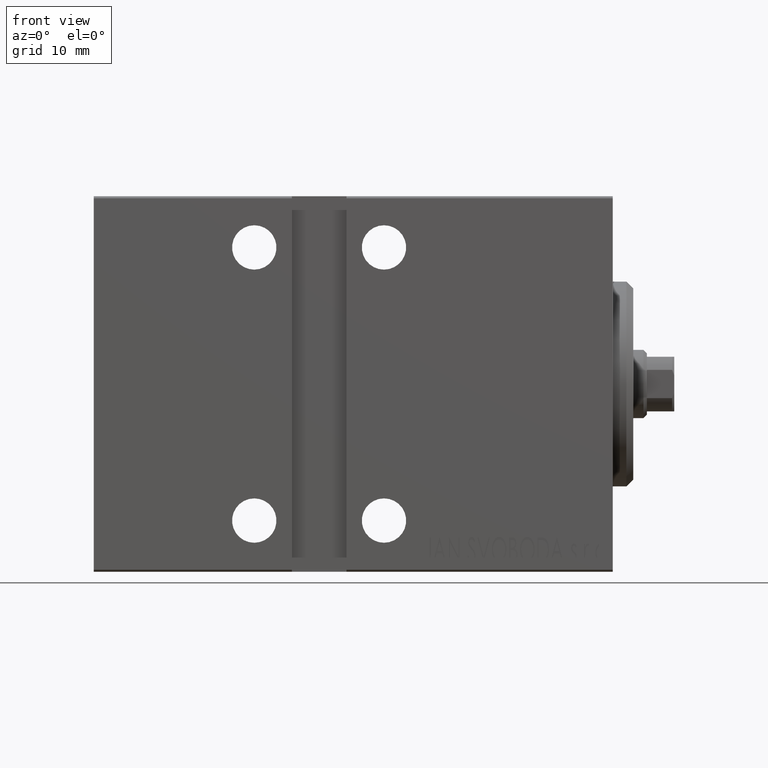
[diagram: clean part render]
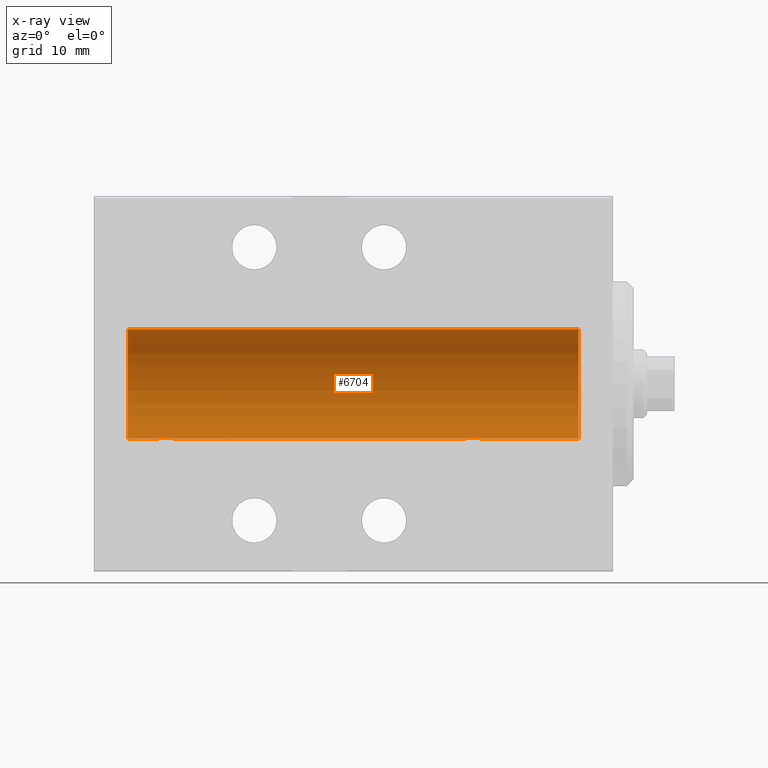
[diagram: x-ray — body ghosted, one internal face saturated and labeled with its STEP entity id]
A machine part, front view, then the same camera in x-ray: the body is ghosted and one INTERNAL B-rep face — a face not visible from any outside direction — is saturated and labeled: STEP entity #6704.
In plain terms, the highlighted cylindrical surface (partial cylindrical patch) has radius 8 mm, axis along (1, 0, -0).
Its self-contained STEP definition (entity closure, byte-faithful):
#72 = EDGE_CURVE ( 'NONE', #35275, #3928, #22215, .T. ) ;
#909 = ORIENTED_EDGE ( 'NONE', *, *, #29361, .T. ) ;
#1686 = ORIENTED_EDGE ( 'NONE', *, *, #34898, .F. ) ;
#1924 = CARTESIAN_POINT ( 'NONE',  ( 64.28333392022814508, -0.3297258132310580403, -7.994620111903502746 ) ) ;
#1994 = CARTESIAN_POINT ( 'NONE',  ( 21.12714162834986098, -1.084361243153320720, -7.926301147147069237 ) ) ;
#2358 = CARTESIAN_POINT ( 'NONE',  ( 65.82830666114115559, -1.217212176555607872, -7.907113222863030089 ) ) ;
#2566 = CARTESIAN_POINT ( 'NONE',  ( 65.17298283628254296, -1.217515856520244855, -7.907063872927295733 ) ) ;
#2645 = CARTESIAN_POINT ( 'NONE',  ( 71.00000000000000000, 9.797174393178823685E-16, -7.999999999999998224 ) ) ;
#3597 = EDGE_LOOP ( 'NONE', ( #10533, #12752, #13181, #3981, #10440, #22176, #909, #1686 ) ) ;
#3928 = VERTEX_POINT ( 'NONE', #25520 ) ;
#3981 = ORIENTED_EDGE ( 'NONE', *, *, #11980, .T. ) ;
#4256 = AXIS2_PLACEMENT_3D ( 'NONE', #5460, #35700, #32625 ) ;
#4613 = CARTESIAN_POINT ( 'NONE',  ( 21.59250917855271013, -0.6288424646912643690, -7.976670562295706368 ) ) ;
#5194 = CARTESIAN_POINT ( 'NONE',  ( 64.40834966532098349, -0.6303134207468059635, -7.976551562999471656 ) ) ;
#5266 = CARTESIAN_POINT ( 'NONE',  ( 20.33559448851098850, -1.250104850332080408, -7.901723728054489193 ) ) ;
#5460 = CARTESIAN_POINT ( 'NONE',  ( 5.000000000000004441, 0.000000000000000000, 0.000000000000000000 ) ) ;
#5632 = CARTESIAN_POINT ( 'NONE',  ( 66.75000000000000000, 9.797173987969553159E-16, -7.999999999999998224 ) ) ;
#5849 = CARTESIAN_POINT ( 'NONE',  ( 66.12714162834984677, -1.084361243153328047, -7.926301147147063908 ) ) ;
#6704 = ADVANCED_FACE ( 'NONE', ( #22704 ), #16121, .F. ) ;
#6780 = DIRECTION ( 'NONE',  ( -1.000000000000000000, -0.000000000000000000, -0.000000000000000000 ) ) ;
#7037 = CARTESIAN_POINT ( 'NONE',  ( 21.49958686675913100, -0.7680324342712168129, -7.963892330120035723 ) ) ;
#7746 = DIRECTION ( 'NONE',  ( -1.000000000000000000, -0.000000000000000000, -0.000000000000000000 ) ) ;
#7748 = CIRCLE ( 'NONE', #4256, 7.999999999999998224 ) ;
#7790 = VERTEX_POINT ( 'NONE', #17834 ) ;
#7895 = CARTESIAN_POINT ( 'NONE',  ( 21.71715712019487654, -0.3279446529214867234, -7.994696267489720398 ) ) ;
#8109 = CARTESIAN_POINT ( 'NONE',  ( 21.05544625654725266, -1.122809931695433638, -7.920878051565290789 ) ) ;
#8348 = DIRECTION ( 'NONE',  ( 0.000000000000000000, 0.000000000000000000, 1.000000000000000000 ) ) ;
#8694 = CARTESIAN_POINT ( 'NONE',  ( 64.50158244334248536, -0.7695044314719156064, -7.963745725343513548 ) ) ;
#8974 = VERTEX_POINT ( 'NONE', #20861 ) ;
#9004 = DIRECTION ( 'NONE',  ( -1.000000000000000000, -0.000000000000000000, -0.000000000000000000 ) ) ;
#9131 = CARTESIAN_POINT ( 'NONE',  ( 66.71715712019489786, -0.3279446529214849471, -7.994696267489720398 ) ) ;
#9574 = CARTESIAN_POINT ( 'NONE',  ( 21.26267005793690856, -0.9937204387496726410, -7.938174152191988853 ) ) ;
#10440 = ORIENTED_EDGE ( 'NONE', *, *, #38823, .T. ) ;
#10533 = ORIENTED_EDGE ( 'NONE', *, *, #72, .F. ) ;
#11254 = VECTOR ( 'NONE', #7746, 1000.000000000000000 ) ;
#11629 = CARTESIAN_POINT ( 'NONE',  ( 71.00000000000000000, 0.000000000000000000, 0.000000000000000000 ) ) ;
#11980 = EDGE_CURVE ( 'NONE', #7790, #13292, #24535, .T. ) ;
#12408 = CARTESIAN_POINT ( 'NONE',  ( 64.87056207267771413, -1.092287957405123633, -7.925333492638526600 ) ) ;
#12642 = CARTESIAN_POINT ( 'NONE',  ( 19.50158244334251378, -0.7695044314719124978, -7.963745725343517101 ) ) ;
#12752 = ORIENTED_EDGE ( 'NONE', *, *, #17626, .T. ) ;
#13181 = ORIENTED_EDGE ( 'NONE', *, *, #16681, .T. ) ;
#13292 = VERTEX_POINT ( 'NONE', #25186 ) ;
#13619 = VERTEX_POINT ( 'NONE', #39582 ) ;
#15020 = CARTESIAN_POINT ( 'NONE',  ( 71.00000000000000000, 9.797174393178823685E-16, -7.999999999999998224 ) ) ;
#15688 = CARTESIAN_POINT ( 'NONE',  ( 66.74999999999998579, -0.1632520343443076560, -8.000000000000000000 ) ) ;
#16121 = CYLINDRICAL_SURFACE ( 'NONE', #30424, 7.999999999999998224 ) ;
#16133 = CARTESIAN_POINT ( 'NONE',  ( 19.73184514123549604, -0.9994562523959170663, -7.938165420771272629 ) ) ;
#16512 = VECTOR ( 'NONE', #31344, 1000.000000000000000 ) ;
#16681 = EDGE_CURVE ( 'NONE', #41584, #7790, #28089, .T. ) ;
#17626 = EDGE_CURVE ( 'NONE', #35275, #41584, #26070, .T. ) ;
#17834 = CARTESIAN_POINT ( 'NONE',  ( 64.25000000000000000, -9.361515949570352286E-15, -7.999999999999998224 ) ) ;
#17957 = CARTESIAN_POINT ( 'NONE',  ( 71.00000000000000000, 9.797174393178823685E-16, -7.999999999999998224 ) ) ;
#18546 = CARTESIAN_POINT ( 'NONE',  ( 64.25000000000002842, -0.1654128203352991100, -7.999999999999996447 ) ) ;
#18981 = CARTESIAN_POINT ( 'NONE',  ( 66.59250917855270302, -0.6288424646912635918, -7.976670562295704592 ) ) ;
#20698 = VERTEX_POINT ( 'NONE', #22394 ) ;
#20861 = CARTESIAN_POINT ( 'NONE',  ( 5.000000000000004441, 0.000000000000000000, 7.999999999999998224 ) ) ;
#21466 = CARTESIAN_POINT ( 'NONE',  ( 19.40834966532100481, -0.6303134207468028549, -7.976551562999471656 ) ) ;
#22048 = CARTESIAN_POINT ( 'NONE',  ( 66.32687899779141105, -0.9409612394163470173, -7.944680966683013601 ) ) ;
#22176 = ORIENTED_EDGE ( 'NONE', *, *, #31100, .T. ) ;
#22215 = CIRCLE ( 'NONE', #39711, 7.999999999999998224 ) ;
#22394 = CARTESIAN_POINT ( 'NONE',  ( 19.25000000000000711, -6.253246997522681077E-15, -7.999999999999998224 ) ) ;
#22704 = FACE_OUTER_BOUND ( 'NONE', #3597, .T. ) ;
#22792 = CARTESIAN_POINT ( 'NONE',  ( 71.00000000000000000, 0.000000000000000000, 7.999999999999998224 ) ) ;
#24535 = LINE ( 'NONE', #17957, #16512 ) ;
#24536 = CARTESIAN_POINT ( 'NONE',  ( 21.75000000000000355, 9.797173987965608855E-16, -7.999999999999998224 ) ) ;
#24830 = DIRECTION ( 'NONE',  ( 0.000000000000000000, 0.000000000000000000, 1.000000000000000000 ) ) ;
#25055 = B_SPLINE_CURVE_WITH_KNOTS ( 'NONE', 3,
 ( #24536, #37916, #7895, #4613, #7037, #35064, #9574, #1994, #8109, #42655, #38129, #5266, #26008, #25195, #16133, #12642, #21466, #34847, #29513, #38346 ),
 .UNSPECIFIED., .F., .F.,
 ( 4, 2, 2, 2, 2, 2, 2, 2, 2, 4 ),
 ( 0.003914068143704946962, 0.004403205918210064719, 0.004892343692715182477, 0.005136912579967740922, 0.005381481467220300234, 0.005870619241725407583, 0.006359757016230515800, 0.006848894790735624016, 0.007338032565240732233, 0.007827170339745840449 ),
 .UNSPECIFIED. ) ;
#25186 = CARTESIAN_POINT ( 'NONE',  ( 21.75000000000000355, 9.797173987965608855E-16, -7.999999999999998224 ) ) ;
#25195 = CARTESIAN_POINT ( 'NONE',  ( 19.87056207267772123, -1.092287957405124077, -7.925333492638530153 ) ) ;
#25341 = CARTESIAN_POINT ( 'NONE',  ( 66.26267005793690146, -0.9937204387496809677, -7.938174152191988853 ) ) ;
#25520 = CARTESIAN_POINT ( 'NONE',  ( 71.00000000000000000, 0.000000000000000000, 7.999999999999998224 ) ) ;
#25778 = CARTESIAN_POINT ( 'NONE',  ( 64.25000000000000000, -9.361515949570352286E-15, -7.999999999999998224 ) ) ;
#25989 = CARTESIAN_POINT ( 'NONE',  ( 64.73184514123549604, -0.9994562523959209521, -7.938165420771274405 ) ) ;
#26008 = CARTESIAN_POINT ( 'NONE',  ( 20.17298283628254651, -1.217515856520243966, -7.907063872927295733 ) ) ;
#26070 = LINE ( 'NONE', #2645, #28590 ) ;
#27266 = CARTESIAN_POINT ( 'NONE',  ( 66.75000000000000000, 9.797173987969553159E-16, -7.999999999999998224 ) ) ;
#28089 = B_SPLINE_CURVE_WITH_KNOTS ( 'NONE', 3,
 ( #5632, #15688, #9131, #18981, #42639, #22048, #25341, #5849, #38494, #2358, #35429, #38714, #2566, #12408, #25989, #8694, #5194, #1924, #18546, #25778 ),
 .UNSPECIFIED., .F., .F.,
 ( 4, 2, 2, 2, 2, 2, 2, 2, 2, 4 ),
 ( 0.003914068143704950431, 0.004403205918210086403, 0.004892343692715222375, 0.005136912579967791229, 0.005381481467220359215, 0.005870619241725457890, 0.006359757016230557433, 0.006848894790735656976, 0.007338032565240756519, 0.007827170339745856062 ),
 .UNSPECIFIED. ) ;
#28124 = CARTESIAN_POINT ( 'NONE',  ( 71.00000000000000000, 9.797174393178823685E-16, -7.999999999999998224 ) ) ;
#28590 = VECTOR ( 'NONE', #6780, 1000.000000000000000 ) ;
#29361 = EDGE_CURVE ( 'NONE', #13619, #8974, #7748, .T. ) ;
#29513 = CARTESIAN_POINT ( 'NONE',  ( 19.25000000000000355, -0.1654128203352942528, -7.999999999999996447 ) ) ;
#29812 = LINE ( 'NONE', #22792, #33757 ) ;
#30424 = AXIS2_PLACEMENT_3D ( 'NONE', #31859, #32075, #24830 ) ;
#31100 = EDGE_CURVE ( 'NONE', #20698, #13619, #37776, .T. ) ;
#31344 = DIRECTION ( 'NONE',  ( -1.000000000000000000, -0.000000000000000000, -0.000000000000000000 ) ) ;
#31859 = CARTESIAN_POINT ( 'NONE',  ( 71.00000000000000000, 0.000000000000000000, 0.000000000000000000 ) ) ;
#32075 = DIRECTION ( 'NONE',  ( -1.000000000000000000, -0.000000000000000000, -0.000000000000000000 ) ) ;
#32625 = DIRECTION ( 'NONE',  ( 0.000000000000000000, 0.000000000000000000, 1.000000000000000000 ) ) ;
#33757 = VECTOR ( 'NONE', #9004, 1000.000000000000000 ) ;
#34847 = CARTESIAN_POINT ( 'NONE',  ( 19.28333392022814152, -0.3297258132310571521, -7.994620111903500970 ) ) ;
#34898 = EDGE_CURVE ( 'NONE', #3928, #8974, #29812, .T. ) ;
#35064 = CARTESIAN_POINT ( 'NONE',  ( 21.32687899779142171, -0.9409612394163514582, -7.944680966683015377 ) ) ;
#35275 = VERTEX_POINT ( 'NONE', #15020 ) ;
#35429 = CARTESIAN_POINT ( 'NONE',  ( 65.66599605016010344, -1.249894643705226516, -7.901756981264361102 ) ) ;
#35700 = DIRECTION ( 'NONE',  ( -1.000000000000000000, 0.000000000000000000, 0.000000000000000000 ) ) ;
#37776 = LINE ( 'NONE', #28124, #11254 ) ;
#37916 = CARTESIAN_POINT ( 'NONE',  ( 21.75000000000000355, -0.1632520343443075173, -8.000000000000000000 ) ) ;
#38129 = CARTESIAN_POINT ( 'NONE',  ( 20.66599605016010344, -1.249894643705222963, -7.901756981264366431 ) ) ;
#38346 = CARTESIAN_POINT ( 'NONE',  ( 19.25000000000000711, -6.253246997522681077E-15, -7.999999999999998224 ) ) ;
#38364 = DIRECTION ( 'NONE',  ( -1.000000000000000000, 0.000000000000000000, 0.000000000000000000 ) ) ;
#38494 = CARTESIAN_POINT ( 'NONE',  ( 66.05544625654724200, -1.122809931695440744, -7.920878051565284572 ) ) ;
#38714 = CARTESIAN_POINT ( 'NONE',  ( 65.33559448851097784, -1.250104850332083961, -7.901723728054485640 ) ) ;
#38823 = EDGE_CURVE ( 'NONE', #13292, #20698, #25055, .T. ) ;
#39582 = CARTESIAN_POINT ( 'NONE',  ( 5.000000000000004441, 9.797174393178823685E-16, -7.999999999999998224 ) ) ;
#39711 = AXIS2_PLACEMENT_3D ( 'NONE', #11629, #38364, #8348 ) ;
#41584 = VERTEX_POINT ( 'NONE', #27266 ) ;
#42639 = CARTESIAN_POINT ( 'NONE',  ( 66.49958686675913100, -0.7680324342712109287, -7.963892330120037499 ) ) ;
#42655 = CARTESIAN_POINT ( 'NONE',  ( 20.82830666114115914, -1.217212176555602543, -7.907113222863031865 ) ) ;